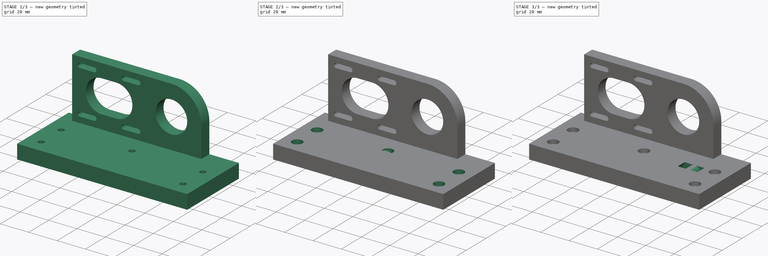
[diagram: build sequence overview — one tinted view per stage of 3, left to right]
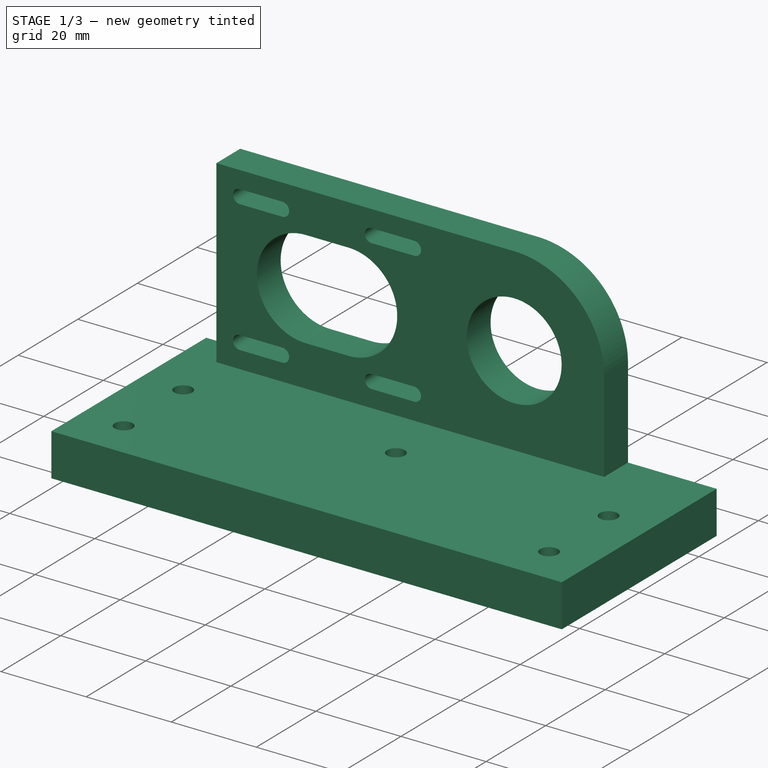
[diagram: stage 1 of 3 — iso view after this stage's code; geometry added in this stage tinted green]
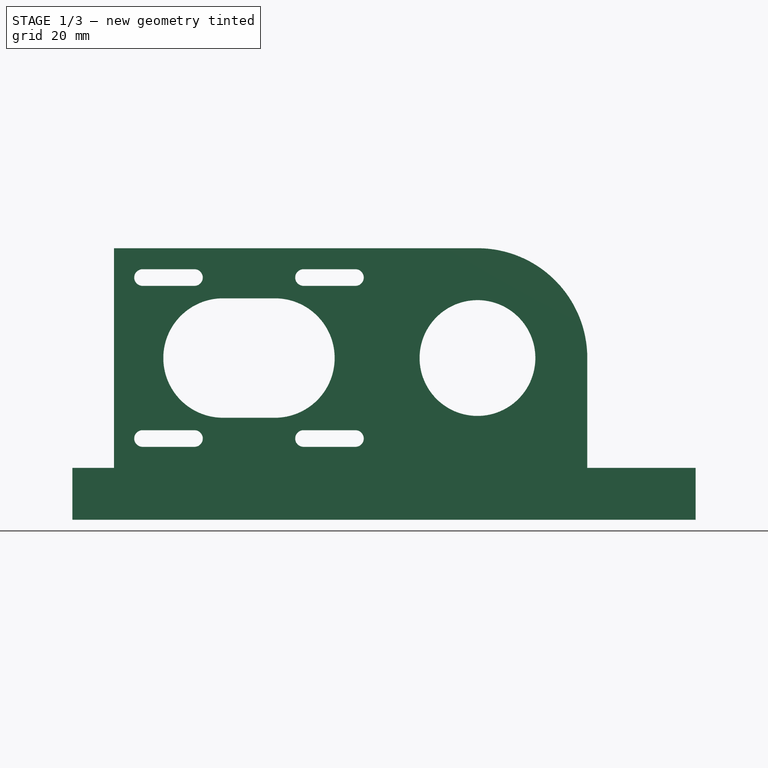
[diagram: stage 1 of 3 — front view after this stage's code; geometry added in this stage tinted green]
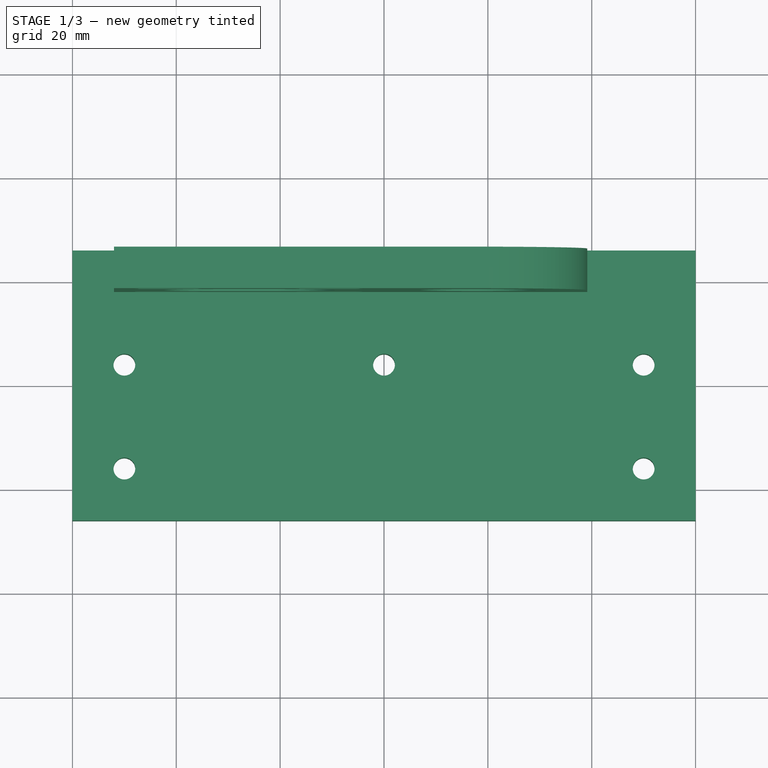
[diagram: stage 1 of 3 — top view after this stage's code; geometry added in this stage tinted green]
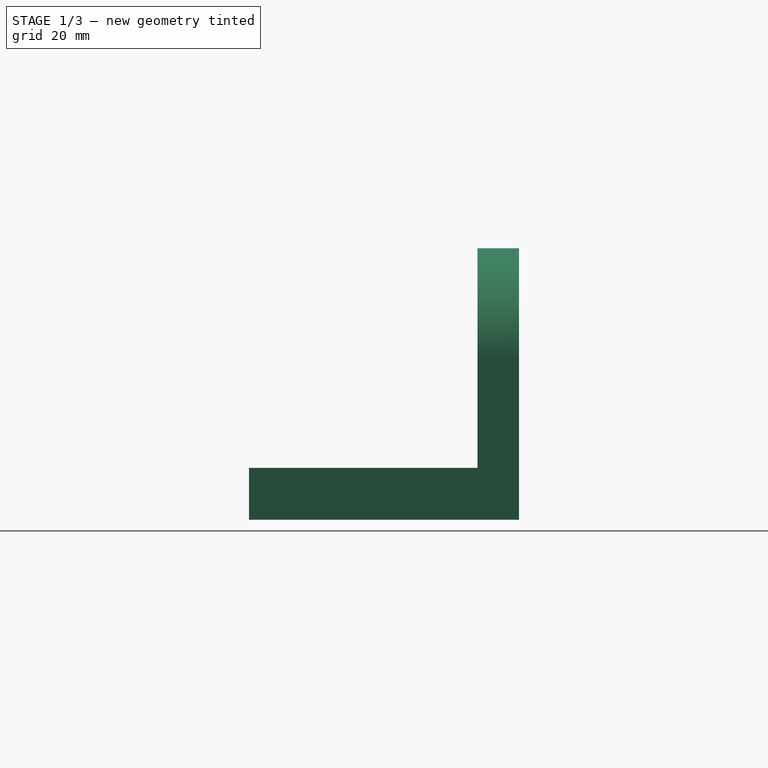
[diagram: stage 1 of 3 — right view after this stage's code; geometry added in this stage tinted green]
FCSTD DOCUMENT  (FreeCAD 0.16R6698 (Git))
Label: z-motor-mount_v2
License: All rights reserved
LicenseURL: http://de.wikipedia.org/wiki/Alle_Rechte_vorbehalten
objects: Sketcher::SketchObject×3, PartDesign::Pad×2, Part::Cylinder×2, Part::Cut×2, PartDesign::Pocket×1
note: 13 computed .brp shape members not serialized (recipe doc carries the construction recipe); baked Part::Feature solids carry a one-line shape summary decoded from their .brp

FEATURE [Sketcher::SketchObject] Sketch
  sketch-geometry (11):
    g0: LineSegment StartX=-60 StartY=26 StartZ=0 EndX=60 EndY=26 EndZ=0
    g1: LineSegment StartX=60 StartY=26 StartZ=0 EndX=60 EndY=-26 EndZ=0
    g2: LineSegment StartX=60 StartY=-26 StartZ=0 EndX=-60 EndY=-26 EndZ=0
    g3: LineSegment StartX=-60 StartY=-26 StartZ=0 EndX=-60 EndY=26 EndZ=0
    g4: Circle CenterX=-50 CenterY=-16 CenterZ=0 NormalX=0 NormalY=0 NormalZ=1 Radius=2.1
    g5: Circle CenterX=-50 CenterY=4 CenterZ=0 NormalX=0 NormalY=0 NormalZ=1 Radius=2.1
    g6: Circle CenterX=0 CenterY=4 CenterZ=0 NormalX=0 NormalY=0 NormalZ=1 Radius=2.1
    g7: Circle CenterX=50 CenterY=4 CenterZ=0 NormalX=0 NormalY=0 NormalZ=1 Radius=2.1
    g8: Circle CenterX=50 CenterY=-16 CenterZ=0 NormalX=0 NormalY=0 NormalZ=1 Radius=2.1
    g9: LineSegment StartX=-60 StartY=-16 StartZ=0 EndX=60 EndY=-16 EndZ=0
    g10: LineSegment StartX=60 StartY=4 StartZ=0 EndX=-60 EndY=4 EndZ=0
  constraints (35):
    c: Coincident(g0,g1)
    c: Coincident(g1,g2)
    c: Coincident(g2,g3)
    c: Coincident(g3,g0)
    c: Horizontal(g0)
    c: Horizontal(g2)
    c: Vertical(g1)
    c: Vertical(g3)
    c: Symmetric(g0,g2,g-1)
    c: Symmetric(g0,g0,g-2)
    c: DistanceX(g0,g0) = 120
    c: DistanceY(g1,g1) = 52
    c: PointOnObject(g6,g-2)
    c: Equal(g4,g5)
    c: Equal(g5,g6)
    c: Equal(g6,g7)
    c: Equal(g7,g8)
    c: PointOnObject(g9,g3)
    c: PointOnObject(g9,g1)
    c: Horizontal(g9)
    c: PointOnObject(g10,g1)
    c: PointOnObject(g10,g3)
    c: Horizontal(g10)
    c: DistanceY(g1,g10) = 30
    c: DistanceY(g1,g9) = 10
    c: PointOnObject(g8,g9)
    c: PointOnObject(g7,g10)
    c: PointOnObject(g6,g10)
    c: PointOnObject(g4,g9)
    c: Radius(g4) = 2.1
    c: DistanceX(g7,g10) = 10
    c: DistanceX(g8,g9) = 10
    c: DistanceX(g9,g4) = 10
    c: PointOnObject(g5,g10)
    c: DistanceX(g10,g5) = 10
FEATURE [PartDesign::Pad] Pad
  Length = 10
  Length2 = 100
  Sketch = -> Sketch
  Type = 0
FEATURE [Sketcher::SketchObject] Sketch007
  ExternalGeometry = -> [Pad]
  Placement = pos=(0,26,0) rot=(0,0.707107,0.707107;3.14159rad)
  Support = -> Pad [Face1]
  sketch-geometry (36):
    g0: LineSegment StartX=0 StartY=10 StartZ=0 EndX=52 EndY=10 EndZ=0
    g1: LineSegment StartX=52 StartY=10 StartZ=0 EndX=52 EndY=52.3 EndZ=0
    g2: LineSegment StartX=52 StartY=52.3 StartZ=0 EndX=0 EndY=52.3 EndZ=0
    g3: LineSegment [constr] StartX=0 StartY=52.3 StartZ=0 EndX=0 EndY=10 EndZ=0
    g4: ArcOfCircle CenterX=21 CenterY=31.15 CenterZ=0 NormalX=0 NormalY=0 NormalZ=1 Radius=11.5 StartAngle=1.5708 EndAngle=4.71239
    g5: ArcOfCircle CenterX=31 CenterY=31.15 CenterZ=0 NormalX=0 NormalY=0 NormalZ=1 Radius=11.5 StartAngle=4.71239 EndAngle=7.85398
    g6: LineSegment StartX=21 StartY=19.65 StartZ=0 EndX=31 EndY=19.65 EndZ=0
    g7: LineSegment StartX=21 StartY=42.65 StartZ=0 EndX=31 EndY=42.65 EndZ=0
    g8: LineSegment [constr] StartX=26 StartY=52.3 StartZ=0 EndX=26 EndY=10 EndZ=0
    g9: LineSegment [constr] StartX=0 StartY=31.15 StartZ=0 EndX=52 EndY=31.15 EndZ=0
    g10: ArcOfCircle CenterX=36.5 CenterY=46.65 CenterZ=0 NormalX=0 NormalY=0 NormalZ=1 Radius=1.6 StartAngle=1.5708 EndAngle=4.71239
    g11: ArcOfCircle CenterX=46.5 CenterY=46.65 CenterZ=0 NormalX=0 NormalY=0 NormalZ=1 Radius=1.6 StartAngle=4.71239 EndAngle=7.85398
    g12: LineSegment StartX=36.5 StartY=45.05 StartZ=0 EndX=46.5 EndY=45.05 EndZ=0
    g13: LineSegment StartX=36.5 StartY=48.25 StartZ=0 EndX=46.5 EndY=48.25 EndZ=0
    g14: ArcOfCircle CenterX=5.5 CenterY=46.65 CenterZ=0 NormalX=0 NormalY=0 NormalZ=1 Radius=1.6 StartAngle=1.5708 EndAngle=4.71239
    g15: ArcOfCircle CenterX=15.5 CenterY=46.65 CenterZ=0 NormalX=0 NormalY=0 NormalZ=1 Radius=1.6 StartAngle=4.71239 EndAngle=7.85398
    g16: LineSegment StartX=5.5 StartY=45.05 StartZ=0 EndX=15.5 EndY=45.05 EndZ=0
    g17: LineSegment StartX=5.5 StartY=48.25 StartZ=0 EndX=15.5 EndY=48.25 EndZ=0
    g18: ArcOfCircle CenterX=5.5 CenterY=15.65 CenterZ=0 NormalX=0 NormalY=0 NormalZ=1 Radius=1.6 StartAngle=1.5708 EndAngle=4.71239
    g19: ArcOfCircle CenterX=15.5 CenterY=15.65 CenterZ=0 NormalX=0 NormalY=0 NormalZ=1 Radius=1.6 StartAngle=4.71239 EndAngle=7.85398
    g20: LineSegment StartX=5.5 StartY=14.05 StartZ=0 EndX=15.5 EndY=14.05 EndZ=0
    g21: LineSegment StartX=5.5 StartY=17.25 StartZ=0 EndX=15.5 EndY=17.25 EndZ=0
    g22: ArcOfCircle CenterX=36.5 CenterY=15.65 CenterZ=0 NormalX=0 NormalY=0 NormalZ=1 Radius=1.6 StartAngle=1.5708 EndAngle=4.71239
    g23: ArcOfCircle CenterX=46.5 CenterY=15.65 CenterZ=0 NormalX=0 NormalY=0 NormalZ=1 Radius=1.6 StartAngle=4.71239 EndAngle=7.85398
    g24: LineSegment StartX=36.5 StartY=14.05 StartZ=0 EndX=46.5 EndY=14.05 EndZ=0
    g25: LineSegment StartX=36.5 StartY=17.25 StartZ=0 EndX=46.5 EndY=17.25 EndZ=0
    g26: LineSegment [constr] StartX=0 StartY=46.65 StartZ=0 EndX=52 EndY=46.65 EndZ=0
    g27: LineSegment [constr] StartX=0 StartY=15.65 StartZ=0 EndX=52 EndY=15.65 EndZ=0
    g28: LineSegment [constr] StartX=15.5 StartY=52.3 StartZ=0 EndX=15.5 EndY=10 EndZ=0
    g29: LineSegment [constr] StartX=36.5 StartY=52.3 StartZ=0 EndX=36.5 EndY=10 EndZ=0
    g30: Circle CenterX=-18 CenterY=31.15 CenterZ=0 NormalX=0 NormalY=0 NormalZ=1 Radius=11.15
    g31: LineSegment StartX=0 StartY=10 StartZ=0 EndX=-39.15 EndY=10 EndZ=0
    g32: LineSegment StartX=-39.15 StartY=10 StartZ=0 EndX=-39.15 EndY=31.15 EndZ=0
    g33: LineSegment StartX=0 StartY=52.3 StartZ=0 EndX=-18.0001 EndY=52.3 EndZ=0
    g34: ArcOfCircle CenterX=-18 CenterY=31.15 CenterZ=0 NormalX=0 NormalY=0 NormalZ=1 Radius=21.15 StartAngle=1.5708 EndAngle=3.14159
    g35: LineSegment [constr] StartX=-39.15 StartY=31.15 StartZ=0 EndX=0 EndY=31.15 EndZ=0
  constraints (99):
    c: Coincident(g0,g1)
    c: Coincident(g1,g2)
    c: Coincident(g2,g3)
    c: Coincident(g3,g0)
    c: Horizontal(g0)
    c: Horizontal(g2)
    c: Vertical(g1)
    c: Vertical(g3)
    c: PointOnObject(g0,g-3)
    c: Tangent(g4,g7) = 1.5708
    c: Tangent(g4,g6) = -1.5708
    c: Tangent(g6,g5) = -1.5708
    c: Tangent(g7,g5) = 1.5708
    c: Horizontal(g6)
    c: Equal(g4,g5)
    c: PointOnObject(g8,g2)
    c: PointOnObject(g8,g-3)
    c: PointOnObject(g9,g3)
    c: PointOnObject(g9,g1)
    c: Symmetric(g8,g8,g9)
    c: Symmetric(g9,g9,g8)
    c: PointOnObject(g4,g9)
    c: DistanceX(g7,g7) = 10
    c: Symmetric(g5,g4,g8)
    c: Radius(g5) = 11.5
    c: PointOnObject(g0,g-2)
    c: DistanceX(g2,g2) = 52
    c: DistanceY(g1,g1) = 42.3
    c: Tangent(g10,g13) = 1.5708
    c: Tangent(g10,g12) = -1.5708
    c: Tangent(g12,g11) = -1.5708
    c: Tangent(g13,g11) = 1.5708
    c: Horizontal(g12)
    c: Equal(g10,g11)
    c: Tangent(g14,g17) = 1.5708
    c: Tangent(g14,g16) = -1.5708
    c: Tangent(g16,g15) = -1.5708
    c: Tangent(g17,g15) = 1.5708
    c: Horizontal(g16)
    c: Equal(g14,g15)
    c: Tangent(g18,g21) = 1.5708
    c: Tangent(g18,g20) = -1.5708
    c: Tangent(g20,g19) = -1.5708
    c: Tangent(g21,g19) = 1.5708
    c: Horizontal(g20)
    c: Equal(g18,g19)
    c: Tangent(g22,g25) = 1.5708
    c: Tangent(g22,g24) = -1.5708
    c: Tangent(g24,g23) = -1.5708
    c: Tangent(g25,g23) = 1.5708
    c: Horizontal(g24)
    c: Equal(g22,g23)
    c: Equal(g19,g15)
    c: Equal(g15,g11)
    c: Equal(g11,g23)
    c: PointOnObject(g26,g3)
    c: PointOnObject(g26,g1)
    c: Horizontal(g26)
    c: PointOnObject(g10,g26)
    c: PointOnObject(g15,g26)
    c: PointOnObject(g27,g3)
    c: PointOnObject(g27,g1)
    c: Horizontal(g27)
    c: PointOnObject(g23,g27)
    c: PointOnObject(g18,g27)
    c: Equal(g16,g21)
    c: Equal(g21,g25)
    c: Equal(g25,g12)
    c: PointOnObject(g28,g2)
    c: PointOnObject(g28,g-3)
    c: Vertical(g28)
    c: Vertical(g29)
    c: PointOnObject(g22,g29)
    c: PointOnObject(g10,g29)
    c: PointOnObject(g15,g28)
    c: PointOnObject(g19,g28)
    c: DistanceX(g24,g24) = 10
    c: Symmetric(g29,g28,g8)
    c: Symmetric(g26,g27,g9)
    c: DistanceY(g18,g14) = 31
    c: DistanceX(g19,g23) = 31
    c: Radius(g22) = 1.6
    c: PointOnObject(g29,g2)
    c: Coincident(g0,g31)
    c: PointOnObject(g31,g-3)
    c: Coincident(g31,g32)
    c: Vertical(g32)
    c: Coincident(g2,g33)
    c: Horizontal(g33)
    c: Coincident(g34,g30)
    c: Coincident(g34,g32)
    c: Coincident(g34,g33)
    c: Coincident(g35,g32)
    c: Coincident(g35,g9)
    c: PointOnObject(g30,g35)
    c: Horizontal(g35)
    c: Tangent(g34,g33)
    c: Radius(g30) = 11.15
    c: DistanceX(g30,g8) = 44
FEATURE [PartDesign::Pad] Pad001
  Length = 8
  Length2 = 100
  Reversed = true
  Sketch = -> Sketch007
  Type = 0
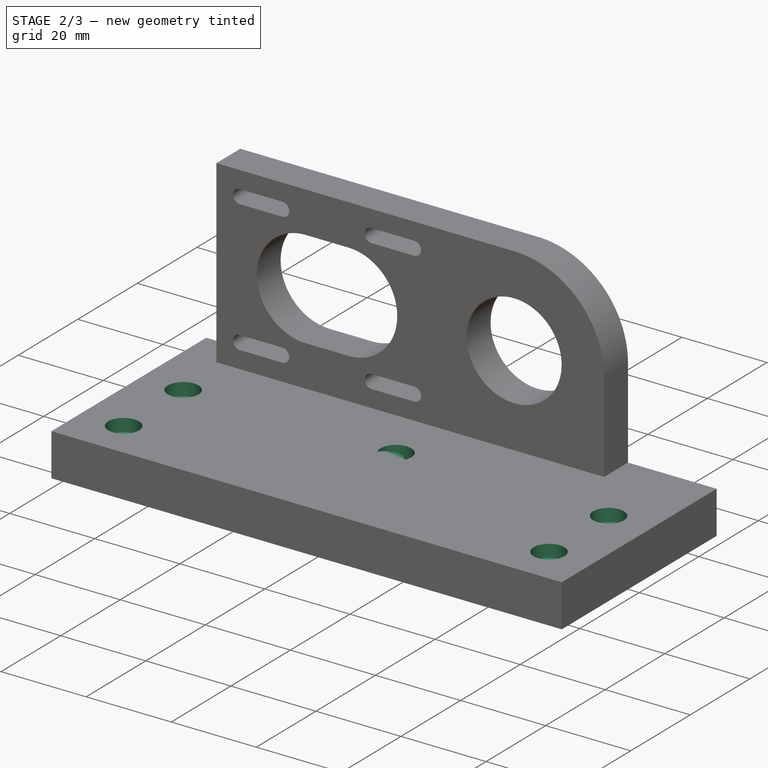
[diagram: stage 2 of 3 — iso view after this stage's code; geometry added in this stage tinted green]
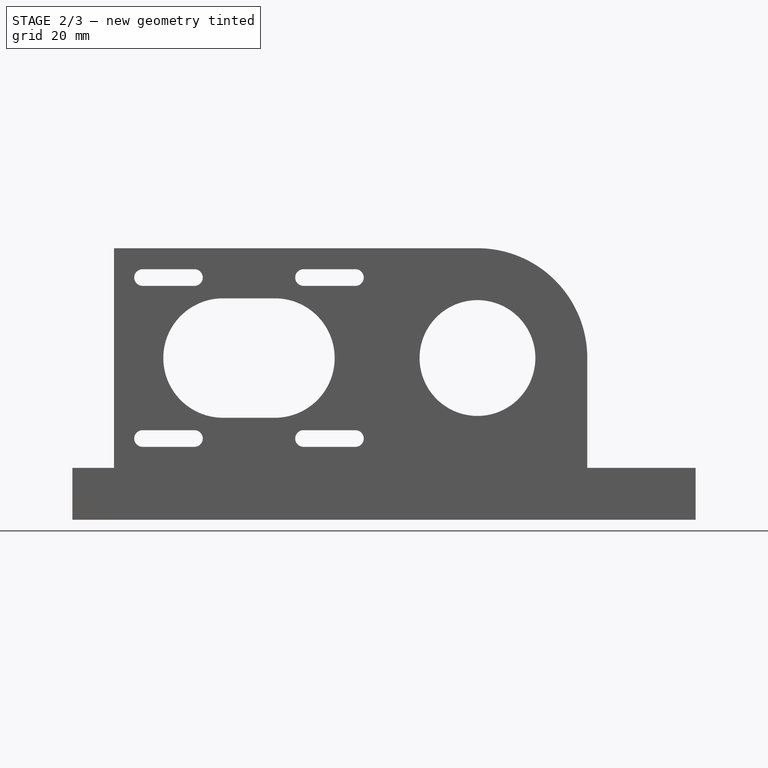
[diagram: stage 2 of 3 — front view after this stage's code; geometry added in this stage tinted green]
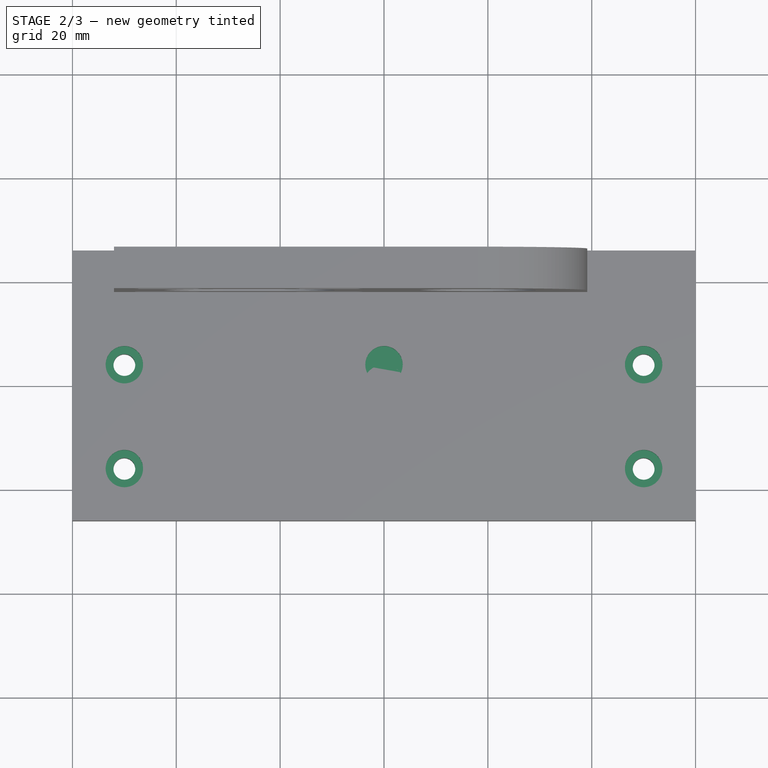
[diagram: stage 2 of 3 — top view after this stage's code; geometry added in this stage tinted green]
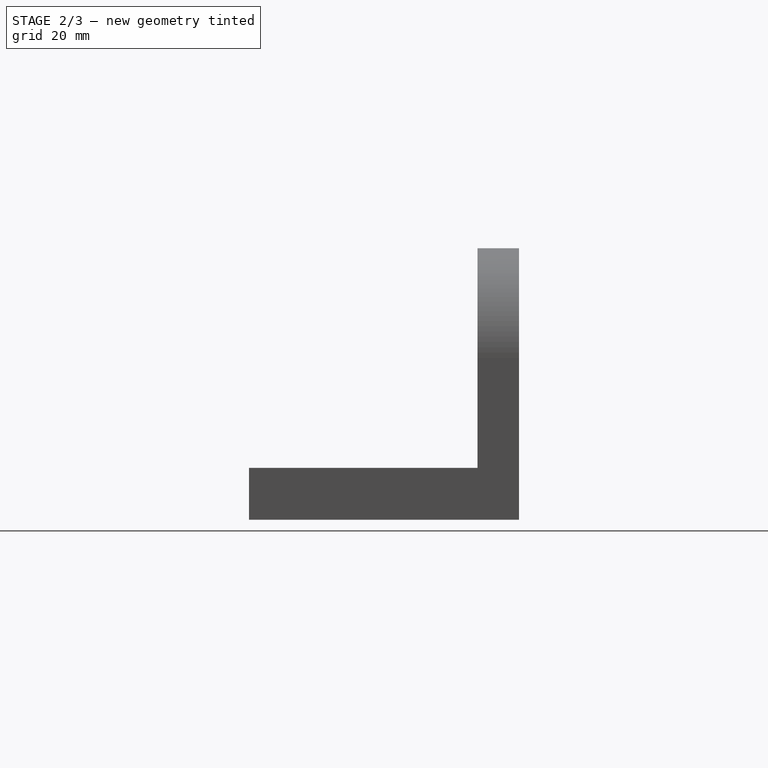
[diagram: stage 2 of 3 — right view after this stage's code; geometry added in this stage tinted green]
FEATURE [Part::Cylinder] Cylinder  label="Zylinder"
  Angle = 360
  Height = 7
  Radius = 8
FEATURE [Part::Cylinder] Cylinder001  label="Zylinder001"
  Angle = 360
  Height = 10
  Radius = 4
FEATURE [Sketcher::SketchObject] Sketch008
  ExternalGeometry = -> [Pad001]
  Placement = pos=(0,0,10) rot=(0,0,1;0rad)
  Support = -> Pad001 [Face7]
  sketch-geometry (10):
    g0: Circle CenterX=-50 CenterY=4 CenterZ=0 NormalX=0 NormalY=0 NormalZ=1 Radius=2.1
    g1: Circle CenterX=-50 CenterY=4 CenterZ=0 NormalX=0 NormalY=0 NormalZ=1 Radius=3.6
    g2: Circle CenterX=-50 CenterY=-16 CenterZ=0 NormalX=0 NormalY=0 NormalZ=1 Radius=2.1
    g3: Circle CenterX=-50 CenterY=-16 CenterZ=0 NormalX=0 NormalY=0 NormalZ=1 Radius=3.6
    g4: Circle CenterX=0 CenterY=4 CenterZ=0 NormalX=0 NormalY=0 NormalZ=1 Radius=2.1
    g5: Circle CenterX=0 CenterY=4 CenterZ=0 NormalX=0 NormalY=0 NormalZ=1 Radius=3.6
    g6: Circle CenterX=50 CenterY=4 CenterZ=0 NormalX=0 NormalY=0 NormalZ=1 Radius=2.1
    g7: Circle CenterX=50 CenterY=4 CenterZ=0 NormalX=0 NormalY=0 NormalZ=1 Radius=3.6
    g8: Circle CenterX=50 CenterY=-16 CenterZ=0 NormalX=0 NormalY=0 NormalZ=1 Radius=2.1
    g9: Circle CenterX=50 CenterY=-16 CenterZ=0 NormalX=0 NormalY=0 NormalZ=1 Radius=3.6
  constraints (20):
    c: Coincident(g0,g-3)
    c: Coincident(g1,g0)
    c: Coincident(g2,g-7)
    c: Coincident(g3,g2)
    c: Coincident(g4,g-4)
    c: Coincident(g5,g4)
    c: Coincident(g6,g-5)
    c: Coincident(g7,g6)
    c: Coincident(g8,g-6)
    c: Coincident(g9,g8)
    c: Equal(g8,g-6)
    c: Equal(g6,g-5)
    c: Equal(g4,g-4)
    c: Equal(g2,g-7)
    c: Equal(g0,g-3)
    c: Equal(g1,g3)
    c: Equal(g3,g5)
    c: Equal(g5,g7)
    c: Equal(g7,g9)
    c: Radius(g9) = 3.6
FEATURE [PartDesign::Pocket] Pocket
  Length = 3
  Sketch = -> Sketch008
  Type = 0
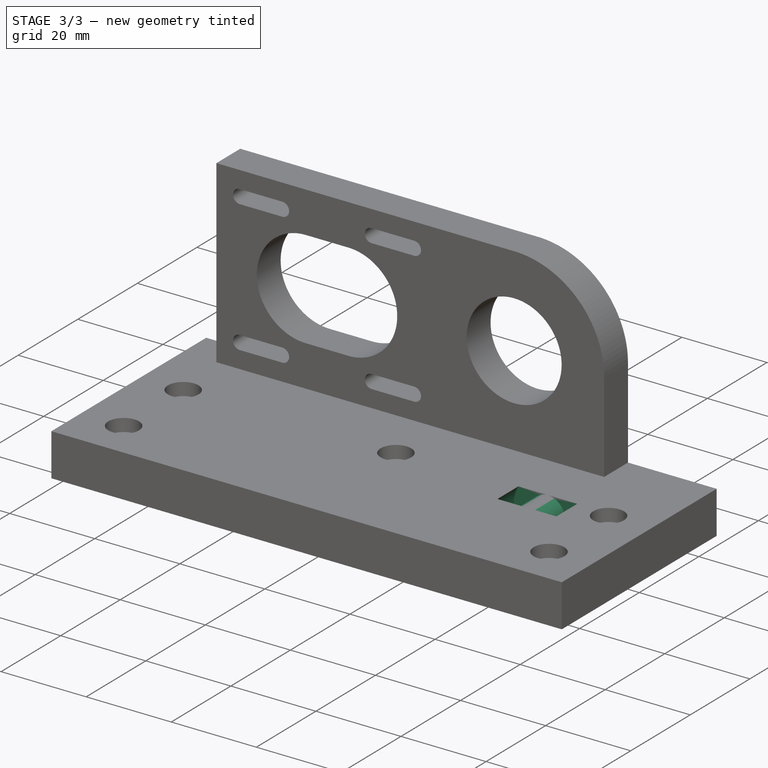
[diagram: stage 3 of 3 — iso view after this stage's code; geometry added in this stage tinted green]
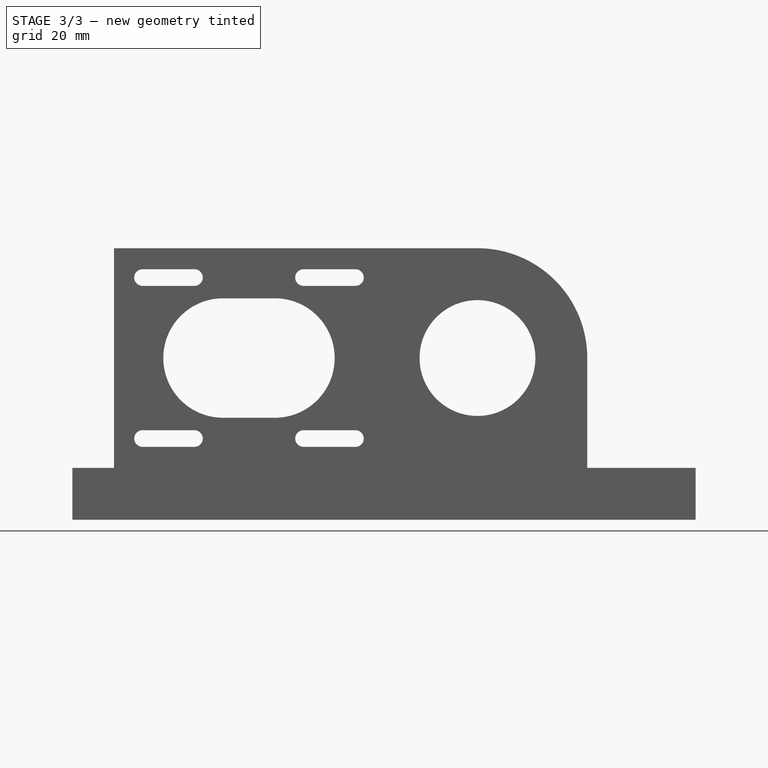
[diagram: stage 3 of 3 — front view after this stage's code; geometry added in this stage tinted green]
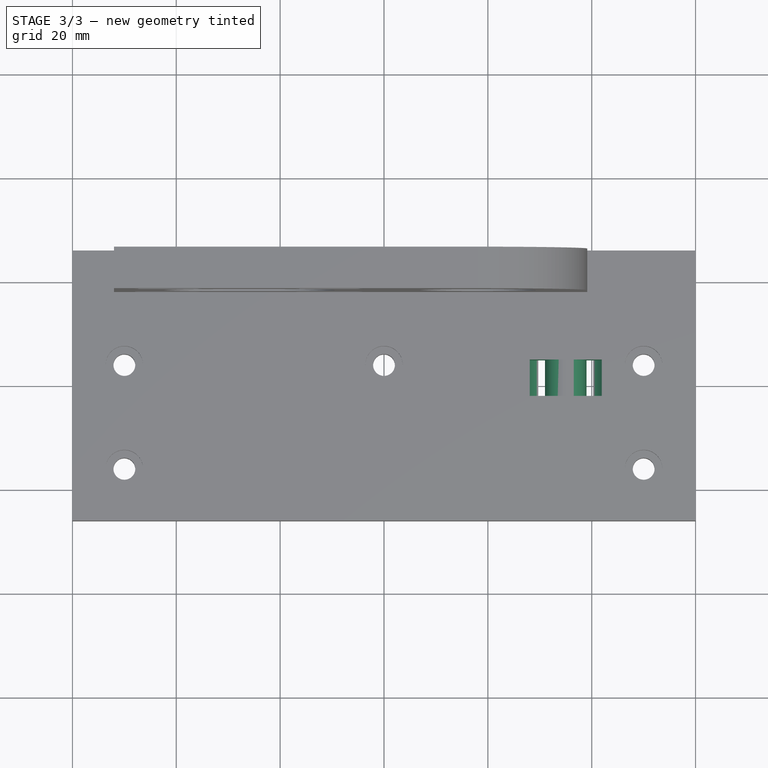
[diagram: stage 3 of 3 — top view after this stage's code; geometry added in this stage tinted green]
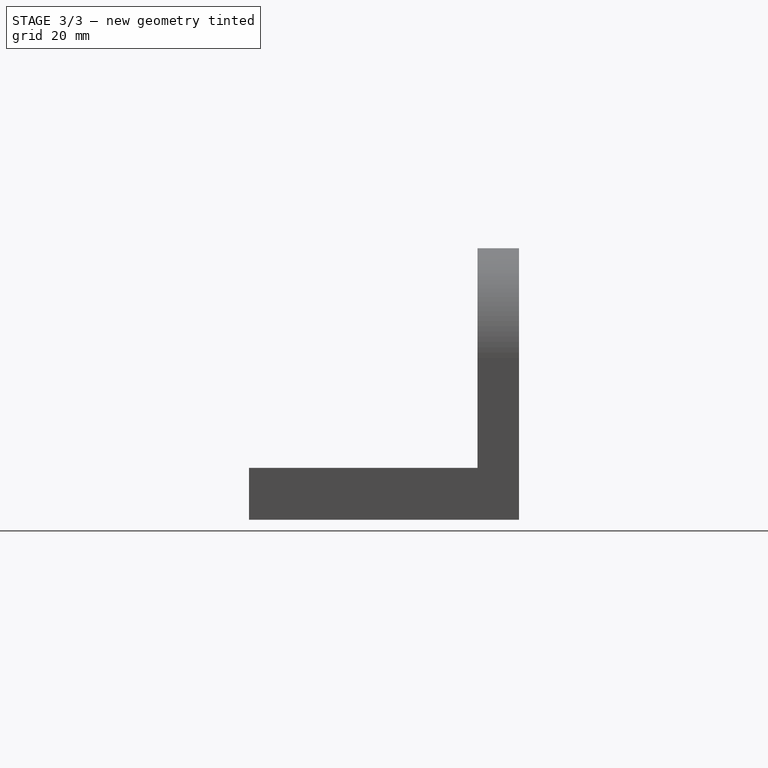
[diagram: stage 3 of 3 — right view after this stage's code; geometry added in this stage tinted green]
FEATURE [Part::Cut] Cut
  Base = -> Cylinder
  Placement = pos=(35,5,6) rot=(1,0,0;1.5708rad)
  Tool = -> Cylinder001
FEATURE [Part::Cut] Cut001
  Base = -> Pocket
  Tool = -> Cut
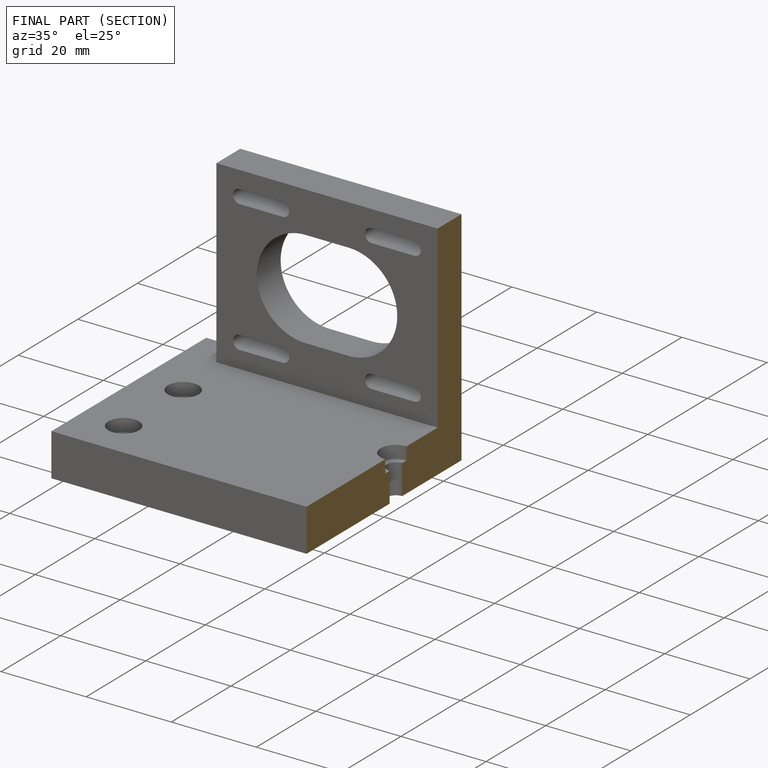
[diagram: finished part — half-section view (interior)]
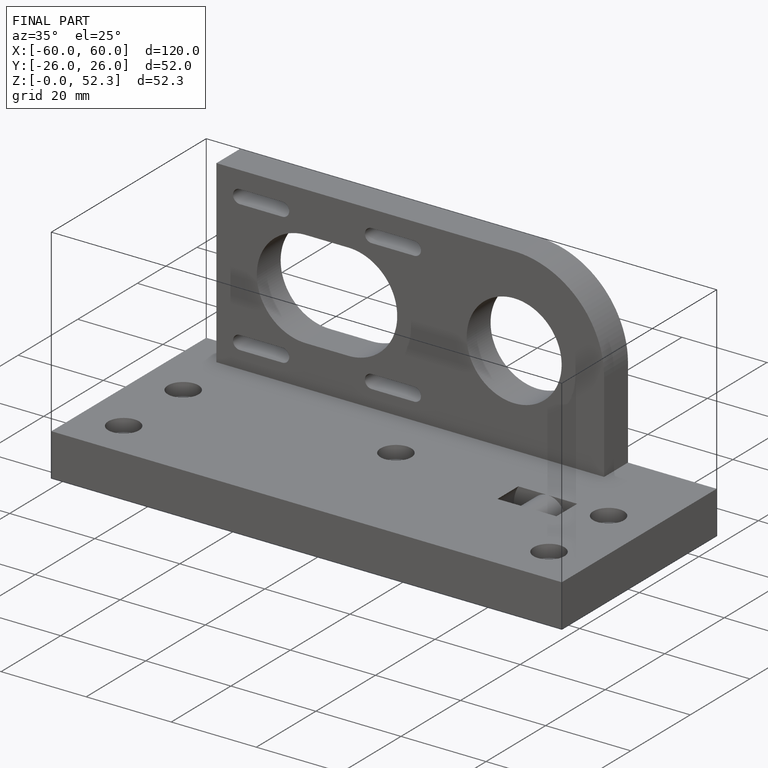
[diagram: finished part — iso view with bounding-box wireframe]
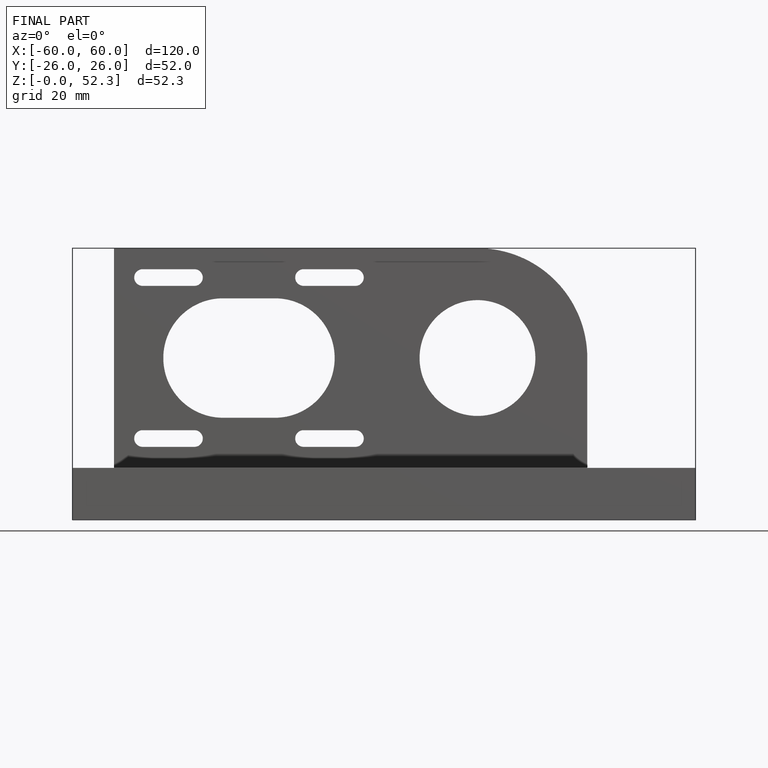
[diagram: finished part — front view with bounding-box wireframe]
